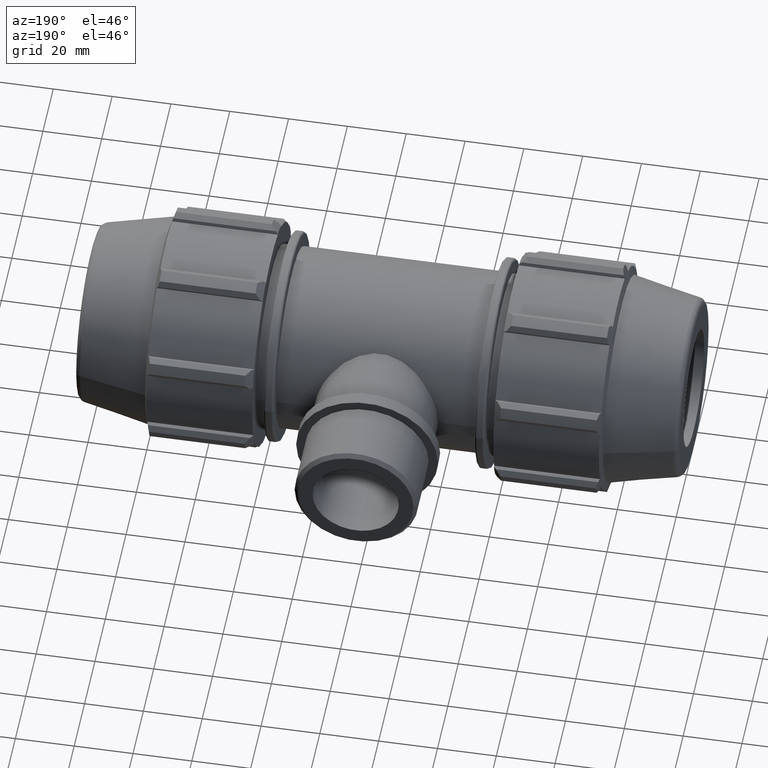
[diagram: clean part render]
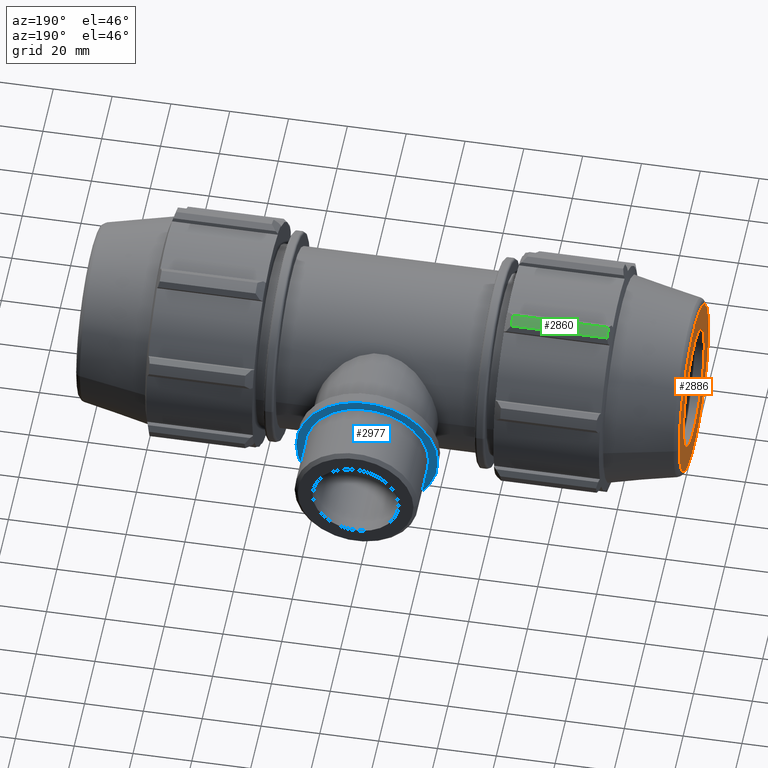
[diagram: same view with three faces highlighted in distinct colors, each labeled with its STEP entity id]
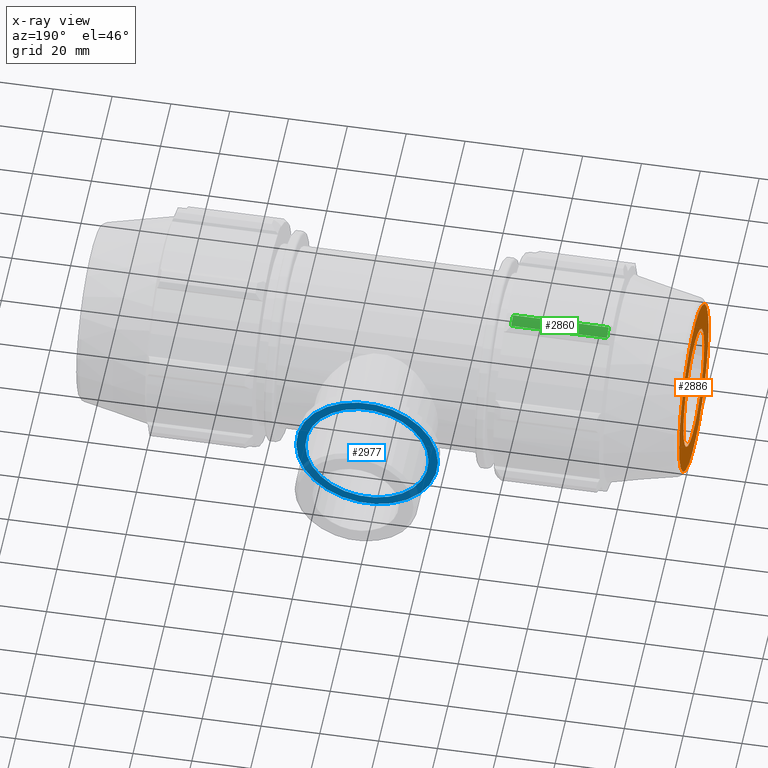
[diagram: x-ray of the same camera — body ghosted, the three highlighted faces saturated]
A machine part, auxiliary view with three faces highlighted in distinct colors.
The next image is the same camera in x-ray (body ghosted, the three faces saturated) — at least one of them is partly hidden behind the body in this view.
Their STEP definitions:

[orange] entity #2886 — the highlighted planar face has unit normal (1, -0, 0).
#57=PLANE('',#3105);
#221=CIRCLE('',#3103,28.38043193361);
#222=CIRCLE('',#3106,20.);
#727=FACE_BOUND('',#1005,.T.);
#829=FACE_OUTER_BOUND('',#1004,.T.);
#1004=EDGE_LOOP('',(#2173));
#1005=EDGE_LOOP('',(#2174));
#1266=VERTEX_POINT('',#4584);
#1267=VERTEX_POINT('',#4588);
#1600=EDGE_CURVE('',#1266,#1266,#221,.T.);
#1601=EDGE_CURVE('',#1267,#1267,#222,.T.);
#2173=ORIENTED_EDGE('',*,*,#1600,.T.);
#2174=ORIENTED_EDGE('',*,*,#1601,.T.);
#2886=ADVANCED_FACE('',(#829,#727),#57,.F.);
#3103=AXIS2_PLACEMENT_3D('',#4585,#3609,#3610);
#3105=AXIS2_PLACEMENT_3D('',#4587,#3613,#3614);
#3106=AXIS2_PLACEMENT_3D('',#4589,#3615,#3616);
#3609=DIRECTION('center_axis',(-1.,5.30313939382931E-16,0.));
#3610=DIRECTION('ref_axis',(-5.30313939382931E-16,-1.,1.83697019872103E-16));
#3613=DIRECTION('center_axis',(1.,-5.30313939382931E-16,0.));
#3614=DIRECTION('ref_axis',(0.,0.,-1.));
#3615=DIRECTION('center_axis',(1.,-5.30313939382931E-16,0.));
#3616=DIRECTION('ref_axis',(0.,0.,-1.));
#4584=CARTESIAN_POINT('',(-102.5,28.38043193361,-8.6890012814787E-15));
#4585=CARTESIAN_POINT('Origin',(-102.5,5.43571787867504E-14,0.));
#4587=CARTESIAN_POINT('Origin',(-102.5,20.,0.));
#4588=CARTESIAN_POINT('',(-102.5,20.,0.));
#4589=CARTESIAN_POINT('Origin',(-102.5,5.43571787867504E-14,0.));

[blue] entity #2977 — the highlighted planar face has unit normal (-0, 1, 0).
#103=PLANE('',#3267);
#289=CIRCLE('',#3260,20.955);
#292=CIRCLE('',#3266,24.09825);
#758=FACE_BOUND('',#1127,.T.);
#920=FACE_OUTER_BOUND('',#1126,.T.);
#1126=EDGE_LOOP('',(#2601));
#1127=EDGE_LOOP('',(#2602));
#1413=VERTEX_POINT('',#5220);
#1416=VERTEX_POINT('',#5229);
#1809=EDGE_CURVE('',#1413,#1413,#289,.T.);
#1812=EDGE_CURVE('',#1416,#1416,#292,.T.);
#2601=ORIENTED_EDGE('',*,*,#1812,.T.);
#2602=ORIENTED_EDGE('',*,*,#1809,.F.);
#2977=ADVANCED_FACE('',(#920,#758),#103,.T.);
#3260=AXIS2_PLACEMENT_3D('',#5221,#4025,#4026);
#3266=AXIS2_PLACEMENT_3D('',#5230,#4037,#4038);
#3267=AXIS2_PLACEMENT_3D('',#5231,#4039,#4040);
#4025=DIRECTION('center_axis',(-1.22464679914735E-16,1.,0.));
#4026=DIRECTION('ref_axis',(1.,1.22464679914735E-16,0.));
#4037=DIRECTION('center_axis',(-1.22464679914735E-16,1.,0.));
#4038=DIRECTION('ref_axis',(1.,1.22464679914735E-16,0.));
#4039=DIRECTION('center_axis',(-1.22464679914735E-16,1.,0.));
#4040=DIRECTION('ref_axis',(0.,0.,1.));
#5220=CARTESIAN_POINT('',(-20.955,49.,0.));
#5221=CARTESIAN_POINT('Origin',(-6.00076931582203E-15,49.,0.));
#5229=CARTESIAN_POINT('',(-24.09825,49.,0.));
#5230=CARTESIAN_POINT('Origin',(-6.00076931582203E-15,49.,0.));
#5231=CARTESIAN_POINT('Origin',(-20.955,49.,0.));

[green] entity #2860 — the highlighted cylindrical surface (partial cylindrical patch) has radius 41 mm, axis along (1, -0, 0).
#193=CIRCLE('',#3032,41.);
#210=CIRCLE('',#3055,41.);
#356=LINE('',#4424,#554);
#378=LINE('',#4535,#576);
#554=VECTOR('',#3440,32.5648531523113);
#576=VECTOR('',#3536,32.5648531523114);
#803=FACE_OUTER_BOUND('',#971,.T.);
#971=EDGE_LOOP('',(#2074,#2075,#2076,#2077));
#1226=VERTEX_POINT('',#4407);
#1227=VERTEX_POINT('',#4411);
#1230=VERTEX_POINT('',#4423);
#1253=VERTEX_POINT('',#4494);
#1527=EDGE_CURVE('',#1226,#1227,#193,.T.);
#1532=EDGE_CURVE('',#1227,#1230,#356,.T.);
#1562=EDGE_CURVE('',#1253,#1230,#210,.T.);
#1582=EDGE_CURVE('',#1253,#1226,#378,.T.);
#2074=ORIENTED_EDGE('',*,*,#1527,.F.);
#2075=ORIENTED_EDGE('',*,*,#1582,.F.);
#2076=ORIENTED_EDGE('',*,*,#1562,.T.);
#2077=ORIENTED_EDGE('',*,*,#1532,.F.);
#2614=CYLINDRICAL_SURFACE('',#3071,41.);
#2860=ADVANCED_FACE('',(#803),#2614,.T.);
#3032=AXIS2_PLACEMENT_3D('',#4412,#3431,#3432);
#3055=AXIS2_PLACEMENT_3D('',#4495,#3487,#3488);
#3071=AXIS2_PLACEMENT_3D('',#4534,#3534,#3535);
#3431=DIRECTION('center_axis',(1.,-5.30313939382931E-16,0.));
#3432=DIRECTION('ref_axis',(8.54486543630854E-16,1.,0.));
#3440=DIRECTION('',(-1.,5.30313939382931E-16,0.));
#3487=DIRECTION('center_axis',(1.,-5.30313939382931E-16,0.));
#3488=DIRECTION('ref_axis',(0.,0.,-1.));
#3534=DIRECTION('center_axis',(1.,-5.30313939382931E-16,0.));
#3535=DIRECTION('ref_axis',(8.54486543630854E-16,1.,0.));
#3536=DIRECTION('',(1.,-5.30313939382931E-16,0.));
#4407=CARTESIAN_POINT('',(-43.46,17.4621409903631,37.0954664619908));
#4411=CARTESIAN_POINT('',(-43.46,13.8828575782305,38.5780541948731));
#4412=CARTESIAN_POINT('Origin',(-43.46,2.30474438055822E-14,0.));
#4423=CARTESIAN_POINT('',(-76.0248531523114,13.8828575782306,38.5780541948731));
#4424=CARTESIAN_POINT('',(-58.5124265761557,13.8828575782305,38.5780541948731));
#4494=CARTESIAN_POINT('',(-76.0248531523114,17.4621409903631,37.0954664619908));
#4495=CARTESIAN_POINT('Origin',(-76.0248531523114,4.0317039366211E-14,0.));
#4534=CARTESIAN_POINT('Origin',(-58.5124265761557,3.10299554404556E-14,
0.));
#4535=CARTESIAN_POINT('',(-58.5124265761557,17.4621409903631,37.0954664619908));